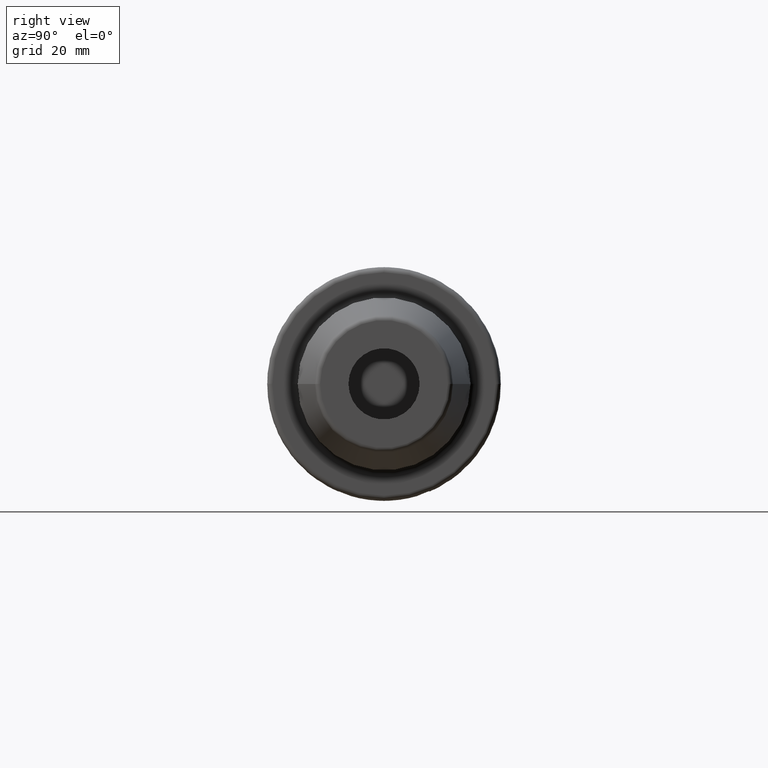
[diagram: clean part render]
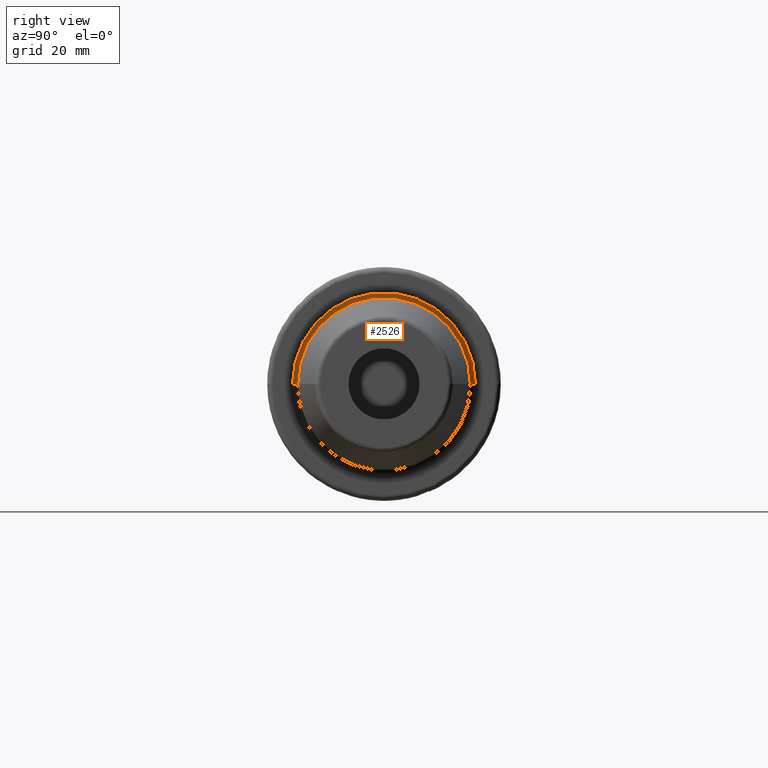
[diagram: same view with one face highlighted and labeled with its STEP entity id]
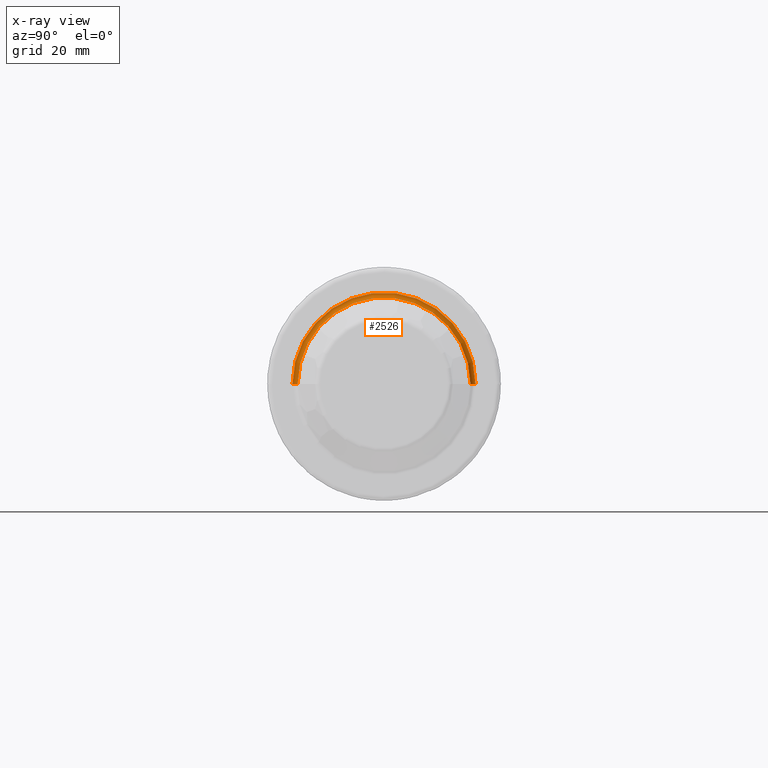
[diagram: x-ray of the same camera — body ghosted, the highlighted face saturated]
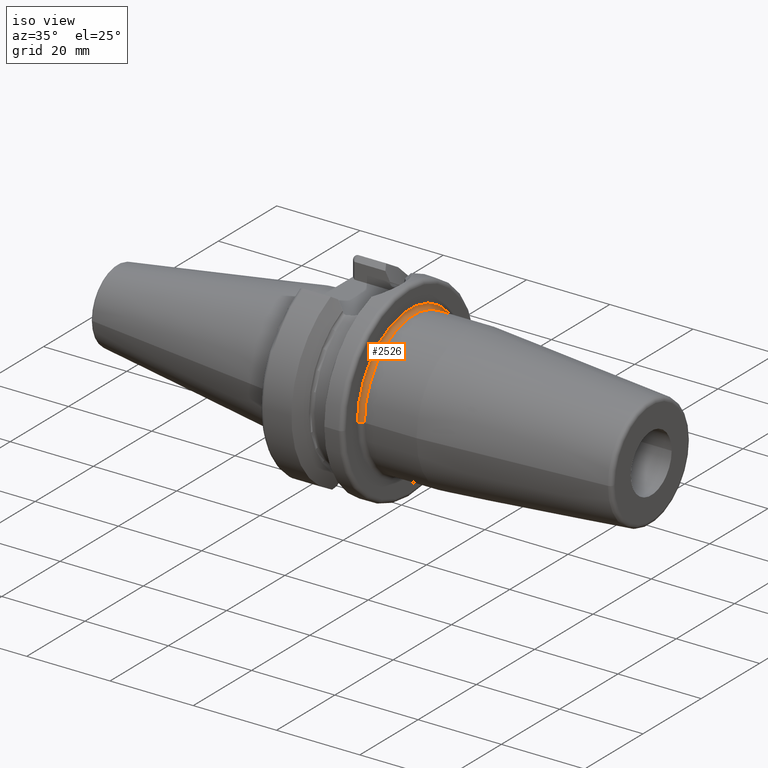
[diagram: same view with one face highlighted and labeled with its STEP entity id]
A machine part, right view. The second image highlights one B-rep face of the part: STEP entity #2526.
The next image is the same camera in x-ray: the body ghosted, the highlighted face saturated — about 0% of this face is hidden behind the body in this view.
A second angle (iso view) of the same face is appended — the face is thin or edge-on in the first view.
In plain terms, the highlighted toroidal blend (fillet) surface has major radius 18 mm and minor (blend) radius 1 mm.
Its self-contained STEP definition (entity closure, byte-faithful):
#827=CARTESIAN_POINT('',(2.2E1,0.E0,0.E0));
#828=DIRECTION('',(1.E0,0.E0,0.E0));
#829=DIRECTION('',(0.E0,1.E0,0.E0));
#830=AXIS2_PLACEMENT_3D('',#827,#828,#829);
#832=CARTESIAN_POINT('',(2.3E1,-1.8E1,9.639511411308E-14));
#833=DIRECTION('',(0.E0,0.E0,-1.E0));
#834=DIRECTION('',(-1.E0,1.385558334732E-13,0.E0));
#835=AXIS2_PLACEMENT_3D('',#832,#833,#834);
#837=CARTESIAN_POINT('',(2.3E1,1.8E1,-9.864331573795E-14));
#838=DIRECTION('',(0.E0,0.E0,1.E0));
#839=DIRECTION('',(-1.E0,-1.385558334732E-13,0.E0));
#840=AXIS2_PLACEMENT_3D('',#837,#838,#839);
#842=CARTESIAN_POINT('',(2.3E1,0.E0,0.E0));
#843=DIRECTION('',(1.E0,0.E0,0.E0));
#844=DIRECTION('',(0.E0,1.E0,0.E0));
#845=AXIS2_PLACEMENT_3D('',#842,#843,#844);
#1387=CARTESIAN_POINT('',(2.2E1,-1.8E1,0.E0));
#1388=CARTESIAN_POINT('',(2.2E1,1.8E1,0.E0));
#1389=VERTEX_POINT('',#1387);
#1390=VERTEX_POINT('',#1388);
#1391=CARTESIAN_POINT('',(2.3E1,-1.7E1,0.E0));
#1392=CARTESIAN_POINT('',(2.3E1,1.7E1,0.E0));
#1393=VERTEX_POINT('',#1391);
#1394=VERTEX_POINT('',#1392);
#2514=CARTESIAN_POINT('',(2.3E1,0.E0,0.E0));
#2515=DIRECTION('',(1.E0,0.E0,0.E0));
#2516=DIRECTION('',(0.E0,9.999590926702E-1,-9.045053132246E-3));
#2517=AXIS2_PLACEMENT_3D('',#2514,#2515,#2516);
#2518=TOROIDAL_SURFACE('',#2517,1.8E1,1.E0);
#2519=ORIENTED_EDGE('',*,*,#2494,.F.);
#2520=ORIENTED_EDGE('',*,*,#2509,.T.);
#2522=ORIENTED_EDGE('',*,*,#2521,.T.);
#2523=ORIENTED_EDGE('',*,*,#2505,.F.);
#2524=EDGE_LOOP('',(#2519,#2520,#2522,#2523));
#2525=FACE_OUTER_BOUND('',#2524,.F.);
#2526=ADVANCED_FACE('',(#2525),#2518,.F.);
#831=CIRCLE('',#830,1.8E1);
#836=CIRCLE('',#835,1.E0);
#841=CIRCLE('',#840,1.E0);
#846=CIRCLE('',#845,1.7E1);
#2494=EDGE_CURVE('',#1390,#1389,#831,.T.);
#2505=EDGE_CURVE('',#1389,#1393,#836,.T.);
#2509=EDGE_CURVE('',#1390,#1394,#841,.T.);
#2521=EDGE_CURVE('',#1394,#1393,#846,.T.);